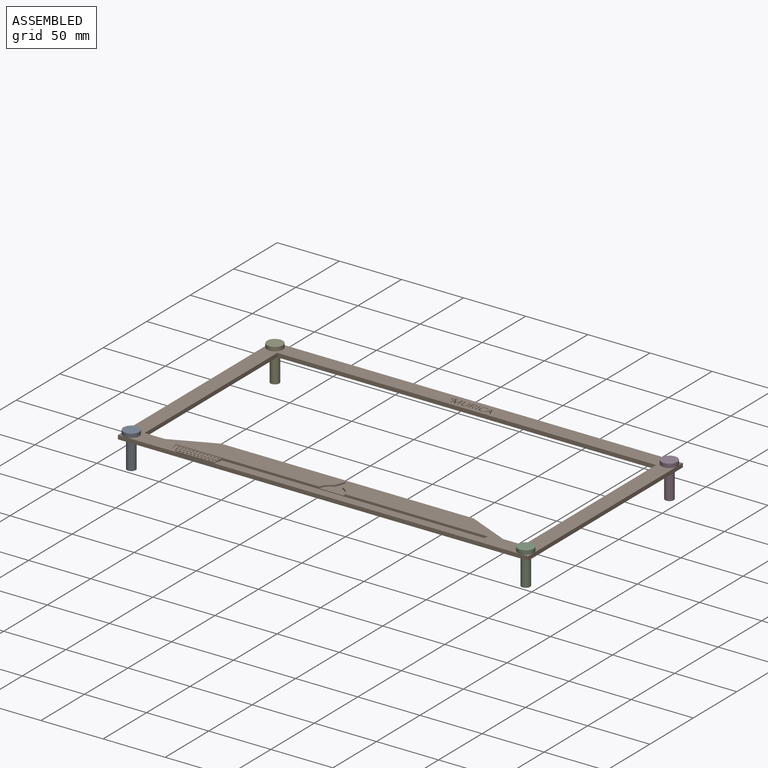
[diagram: assembled view]
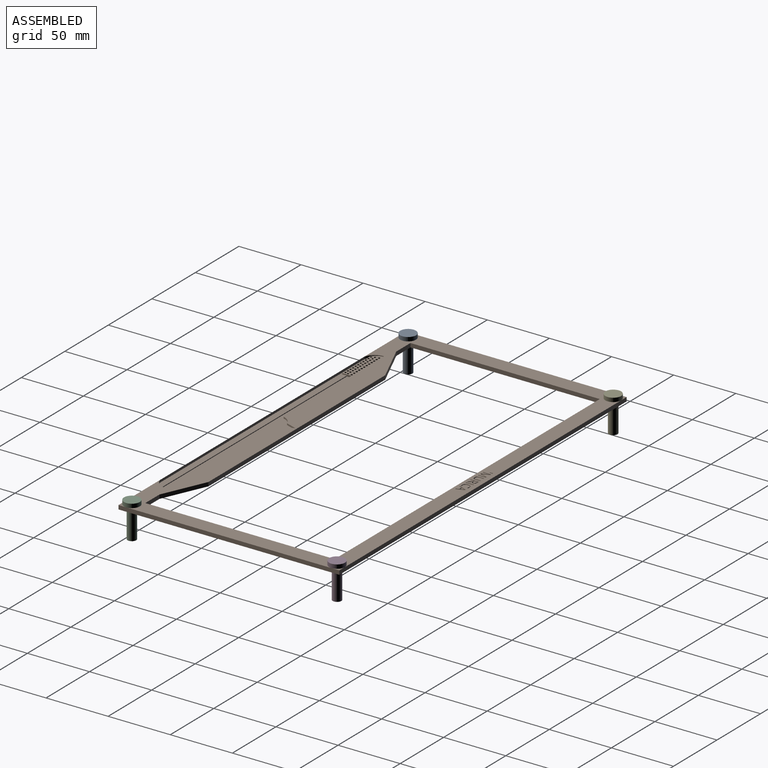
[diagram: assembled view, second angle]
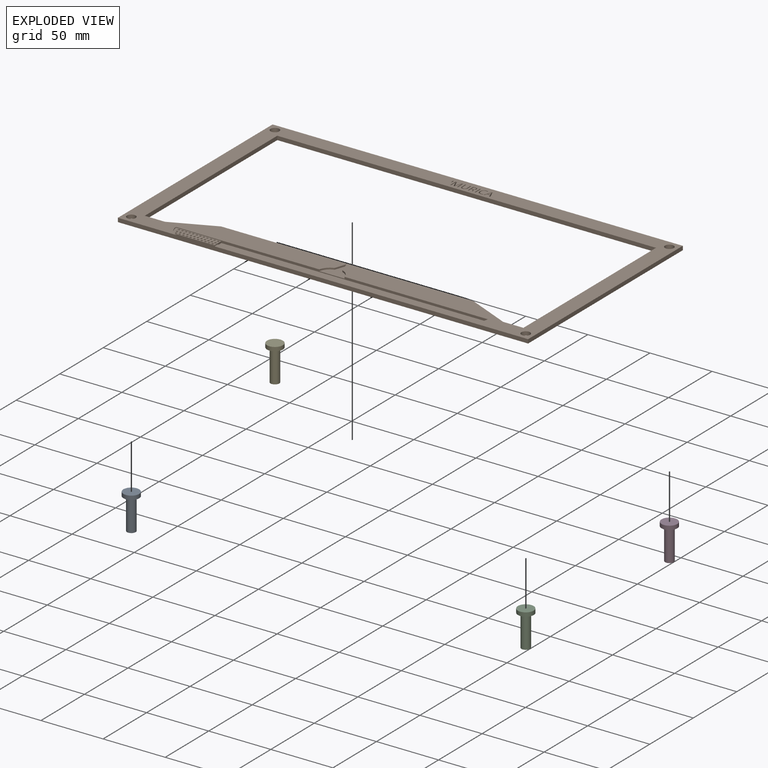
[diagram: exploded view]
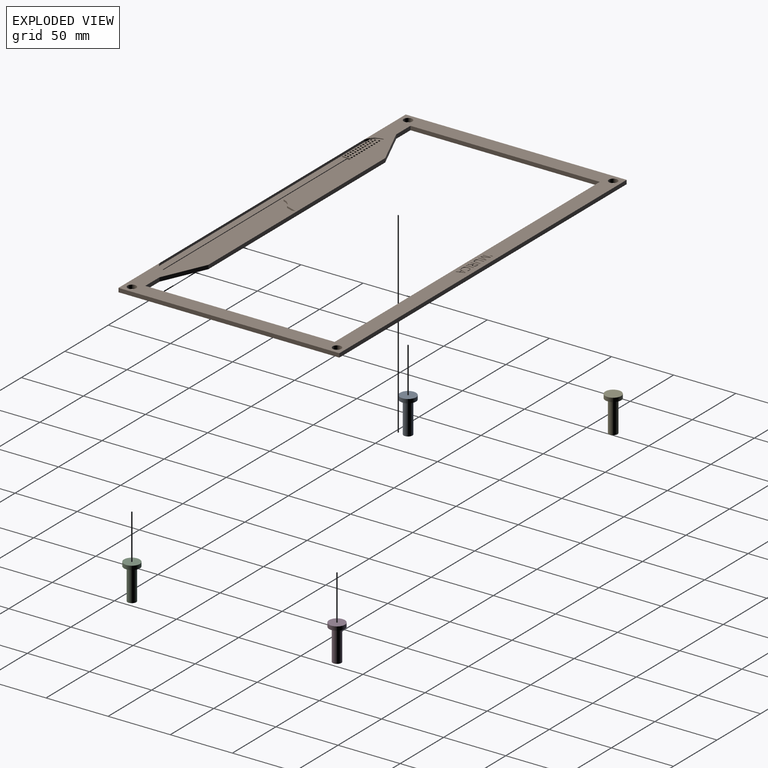
[diagram: exploded view, second angle]
ASSEMBLY  parts=5 mates=3
PART A: 5 faces, bbox 12.7x12.7x28.6 mm
  f0: cylinder r=6.35mm len=12.7mm, axis (0,0,-1), area 126.7mm2, adj f1,f2
  f1: plane 12.7x12.7mm, normal (0,0,1), area 126.7mm2, adj f0
  f2: plane 12.7x12.7mm, normal (0,0,-1), area 88.4mm2, adj f0,f3
  f3: cylinder r=3.49mm len=25.4mm, axis (0,0,1), area 557.4mm2, adj f2,f4
  f4: plane 6.99x6.99mm, normal (0,0,-1), area 38.3mm2, adj f3
PART B: 339 faces, bbox 330.2x177.8x3.2 mm
  f0: plane 330.2x177.8mm, normal (0,0,1), area 12991.8mm2, adj f2,f4,f5,f6,f7,f8,f9,f10
  f1: plane 243.17x1.4mm, normal (0,-1,0), area 179.3mm2, adj f20,f22,f23,f25,f32,f33
  f2: plane 250.99x1.91mm, normal (0,-1,0), area 401.3mm2, adj f0,f20,f23,f25,f26,f27,f30,f31
  f3: plane 330.2x177.8mm, normal (0,0,-1), area 15726.8mm2, adj f4,f5,f6,f7,f8,f9,f10,f11
  f4: plane 16.33x3.18mm, normal (0,1,0), area 51.9mm2, adj f0,f3,f5,f15
  f5: plane 34.47x15.24mm, normal (0.4,0.91,0), area 119.7mm2, adj f0,f3,f4,f6
  f6: plane 203.2x3.18mm, normal (0,1,0), area 645.2mm2, adj f0,f3,f5,f7
  f7: plane 34.47x15.24mm, normal (-0.4,0.91,0), area 119.7mm2, adj f0,f3,f6,f8
  f8: plane 16.33x3.18mm, normal (0,1,0), area 51.9mm2, adj f0,f3,f7,f9
  f9: plane 152.4x3.18mm, normal (1,0,0), area 483.9mm2, adj f0,f3,f8,f10
  f10: plane 304.8x3.18mm, normal (0,-1,0), area 967.7mm2, adj f0,f3,f9,f15
  f11: plane 330.2x3.18mm, normal (0,-1,0), area 1048.4mm2, adj f0,f3,f12,f14
  f12: plane 177.8x3.18mm, normal (1,0,0), area 564.5mm2, adj f0,f3,f11,f13
  f13: plane 330.2x3.18mm, normal (0,1,0), area 1048.4mm2, adj f0,f3,f12,f14
  f14: plane 177.8x3.18mm, normal (-1,0,0), area 564.5mm2, adj f0,f3,f11,f13
  f15: plane 152.4x3.18mm, normal (-1,0,0), area 483.9mm2, adj f0,f3,f4,f10
  f16: cylinder r=3.49mm len=6.99mm, axis (0,0,1), area 69.7mm2, adj f0,f3
  f17: cylinder r=3.49mm len=6.99mm, axis (0,0,1), area 69.7mm2, adj f0,f3
  f18: cylinder r=3.49mm len=6.99mm, axis (0,0,1), area 69.7mm2, adj f0,f3
  f19: cylinder r=3.49mm len=6.99mm, axis (0,0,1), area 69.7mm2, adj f0,f3
  f20: cylinder r=11.12mm len=10.2mm, axis (0,0,1), area 13.1mm2, adj f0,f1,f2,f21,f22,f33
  f21: plane 235.48x1.91mm, normal (0,1,0), area 448.6mm2, adj f0,f20,f22,f25
  f22: plane 243.17x2.13mm, normal (0,0,1), area 510.8mm2, adj f1,f20,f21,f25
  f23: plane 8.07x1.4mm, normal (1,0,0), area 8.9mm2, adj f1,f2,f24,f26,f32,f33
  f24: plane 213.44x0.64mm, normal (0,1,0), area 135.5mm2, adj f23,f25,f26,f32
  f25: cylinder r=11.12mm len=10.2mm, axis (0,0,1), area 23mm2, adj f0,f1,f2,f21,f22,f24,f26,f32
  f26: plane 214.46x4.27mm, normal (0,0,1), area 915.2mm2, adj f2,f23,f24,f25
  f27: cylinder r=10.43mm len=7.58mm, axis (0,0,1), area 13.7mm2, adj f0,f2,f28,f31
  f28: plane 9.12x3.17mm, normal (-0.94,-0.33,0), area 12.3mm2, adj f0,f27,f29,f31
  f29: plane 9.12x3.17mm, normal (0.94,-0.33,0), area 12.3mm2, adj f0,f28,f30,f31
  f30: cylinder r=10.43mm len=7.58mm, axis (0,0,1), area 13.7mm2, adj f0,f2,f29,f31
  f31: plane 20.32x16.7mm, normal (0,0,1), area 148.9mm2, adj f2,f27,f28,f29,f30
  f32: plane 213.44x3.79mm, normal (0,0,1), area 804.8mm2, adj f1,f23,f24,f25
  f33: plane 36.53x8.07mm, normal (0,0,1), area 210.6mm2, adj f1,f2,f20,f23,f35,f36,f37,f38
  f34: plane 1.78x1.76mm, normal (0,0,1), area 2.1mm2, adj f35,f36,f37,f38,f39
  f35: plane 2.03x1.09mm, normal (0.98,-0.2,0), area 2.2mm2, adj f33,f34,f36,f39
  f36: plane 2.03x1.1mm, normal (0.12,-0.99,0), area 2.2mm2, adj f33,f34,f35,f37
  f37: plane 2.03x1.01mm, normal (-0.91,-0.42,0), area 2.2mm2, adj f33,f34,f36,f38
  f38: plane 2.03x0.81mm, normal (-0.68,0.73,0), area 2.2mm2, adj f33,f34,f37,f39
  f39: plane 2.03x0.97mm, normal (0.49,0.87,0), area 2.2mm2, adj f33,f34,f35,f38
  f40: plane 1.79x1.74mm, normal (0,0,1), area 2.1mm2, adj f41,f42,f43,f44,f45
  f41: plane 2.03x0.94mm, normal (0.53,0.85,0), area 2.2mm2, adj f33,f40,f42,f45
  f42: plane 2.03x1.07mm, normal (0.97,-0.25,0), area 2.2mm2, adj f33,f40,f41,f43
  f43: plane 2.03x1.11mm, normal (0.07,-1,0), area 2.2mm2, adj f33,f40,f42,f44
  f44: plane 2.03x1.03mm, normal (-0.93,-0.37,0), area 2.2mm2, adj f33,f40,f43,f45
  f45: plane 2.03x0.85mm, normal (-0.64,0.77,0), area 2.2mm2, adj f33,f40,f41,f44
  f46: plane 1.8x1.71mm, normal (0,0,1), area 2.1mm2, adj f47,f48,f49,f50,f51
  f47: plane 2.03x0.9mm, normal (0.81,-0.59,0), area 2.3mm2, adj f33,f46,f48,f51
  f48: plane 2.03x1.06mm, normal (-0.31,-0.95,0), area 2.3mm2, adj f33,f46,f47,f49
  f49: plane 2.03x1.11mm, normal (-1,0,0), area 2.3mm2, adj f33,f46,f48,f50
  f50: plane 2.03x1.06mm, normal (-0.31,0.95,0), area 2.3mm2, adj f33,f46,f49,f51
  f51: plane 2.03x0.9mm, normal (0.81,0.59,0), area 2.3mm2, adj f33,f46,f47,f50
  f52: plane 1.8x1.71mm, normal (0,0,1), area 2.1mm2, adj f53,f54,f55,f56,f57
  f53: plane 2.03x0.9mm, normal (0.81,-0.59,0), area 2.3mm2, adj f33,f52,f54,f57
  f54: plane 2.03x1.06mm, normal (-0.31,-0.95,0), area 2.3mm2, adj f33,f52,f53,f55
  f55: plane 2.03x1.11mm, normal (-1,0,0), area 2.3mm2, adj f33,f52,f54,f56
  f56: plane 2.03x1.06mm, normal (-0.31,0.95,0), area 2.3mm2, adj f33,f52,f55,f57
  f57: plane 2.03x0.9mm, normal (0.81,0.59,0), area 2.3mm2, adj f33,f52,f53,f56
  f58: plane 1.79x1.74mm, normal (0,0,1), area 2.1mm2, adj f59,f60,f61,f62,f63
  f59: plane 2.03x0.94mm, normal (0.53,0.85,0), area 2.2mm2, adj f33,f58,f60,f63
  f60: plane 2.03x1.07mm, normal (0.97,-0.25,0), area 2.2mm2, adj f33,f58,f59,f61
  f61: plane 2.03x1.11mm, normal (0.07,-1,0), area 2.2mm2, adj f33,f58,f60,f62
  f62: plane 2.03x1.03mm, normal (-0.93,-0.37,0), area 2.2mm2, adj f33,f58,f61,f63
  f63: plane 2.03x0.85mm, normal (-0.64,0.77,0), area 2.2mm2, adj f33,f58,f59,f62
  f64: plane 1.78x1.76mm, normal (0,0,1), area 2.1mm2, adj f65,f66,f67,f68,f69
  f65: plane 2.03x1.09mm, normal (0.98,-0.2,0), area 2.2mm2, adj f33,f64,f66,f69
  f66: plane 2.03x1.1mm, normal (0.12,-0.99,0), area 2.2mm2, adj f33,f64,f65,f67
  f67: plane 2.03x1.01mm, normal (-0.91,-0.42,0), area 2.2mm2, adj f33,f64,f66,f68
  f68: plane 2.03x0.81mm, normal (-0.68,0.73,0), area 2.2mm2, adj f33,f64,f67,f69
  f69: plane 2.03x0.97mm, normal (0.49,0.87,0), area 2.2mm2, adj f33,f64,f65,f68
  f70: plane 1.78x1.76mm, normal (0,0,1), area 2.1mm2, adj f71,f72,f73,f74,f75
  f71: plane 2.03x1.09mm, normal (0.98,-0.2,0), area 2.2mm2, adj f33,f70,f72,f75
  f72: plane 2.03x1.1mm, normal (0.12,-0.99,0), area 2.2mm2, adj f33,f70,f71,f73
  f73: plane 2.03x1.01mm, normal (-0.91,-0.42,0), area 2.2mm2, adj f33,f70,f72,f74
  f74: plane 2.03x0.81mm, normal (-0.68,0.73,0), area 2.2mm2, adj f33,f70,f73,f75
  f75: plane 2.03x0.97mm, normal (0.49,0.87,0), area 2.2mm2, adj f33,f70,f71,f74
  f76: plane 1.79x1.74mm, normal (0,0,1), area 2.1mm2, adj f77,f78,f79,f80,f81
  f77: plane 2.03x1.07mm, normal (0.97,-0.25,0), area 2.2mm2, adj f33,f76,f78,f81
  f78: plane 2.03x1.11mm, normal (0.07,-1,0), area 2.2mm2, adj f33,f76,f77,f79
  f79: plane 2.03x1.03mm, normal (-0.93,-0.37,0), area 2.2mm2, adj f33,f76,f78,f80
  f80: plane 2.03x0.85mm, normal (-0.64,0.77,0), area 2.2mm2, adj f33,f76,f79,f81
  f81: plane 2.03x0.94mm, normal (0.53,0.85,0), area 2.2mm2, adj f33,f76,f77,f80
  f82: plane 1.8x1.71mm, normal (0,0,1), area 2.1mm2, adj f83,f84,f85,f86,f87
  f83: plane 2.03x0.9mm, normal (0.81,0.59,0), area 2.3mm2, adj f33,f82,f84,f87
  f84: plane 2.03x0.9mm, normal (0.81,-0.59,0), area 2.3mm2, adj f33,f82,f83,f85
  f85: plane 2.03x1.06mm, normal (-0.31,-0.95,0), area 2.3mm2, adj f33,f82,f84,f86
  f86: plane 2.03x1.11mm, normal (-1,0,0), area 2.3mm2, adj f33,f82,f85,f87
  f87: plane 2.03x1.06mm, normal (-0.31,0.95,0), area 2.3mm2, adj f33,f82,f83,f86
  f88: plane 1.8x1.71mm, normal (0,0,1), area 2.1mm2, adj f89,f90,f91,f92,f93
  f89: plane 2.03x0.9mm, normal (0.81,-0.59,0), area 2.3mm2, adj f33,f88,f90,f93
  f90: plane 2.03x1.06mm, normal (-0.31,-0.95,0), area 2.3mm2, adj f33,f88,f89,f91
  f91: plane 2.03x1.11mm, normal (-1,0,0), area 2.3mm2, adj f33,f88,f90,f92
  f92: plane 2.03x1.06mm, normal (-0.31,0.95,0), area 2.3mm2, adj f33,f88,f91,f93
  f93: plane 2.03x0.9mm, normal (0.81,0.59,0), area 2.3mm2, adj f33,f88,f89,f92
  f94: plane 1.79x1.74mm, normal (0,0,1), area 2.1mm2, adj f95,f96,f97,f98,f99
  f95: plane 2.03x0.94mm, normal (0.53,0.85,0), area 2.2mm2, adj f33,f94,f96,f99
  f96: plane 2.03x1.07mm, normal (0.97,-0.25,0), area 2.2mm2, adj f33,f94,f95,f97
  f97: plane 2.03x1.11mm, normal (0.07,-1,0), area 2.2mm2, adj f33,f94,f96,f98
  f98: plane 2.03x1.03mm, normal (-0.93,-0.37,0), area 2.2mm2, adj f33,f94,f97,f99
  f99: plane 2.03x0.85mm, normal (-0.64,0.77,0), area 2.2mm2, adj f33,f94,f95,f98
  f100: plane 1.78x1.76mm, normal (0,0,1), area 2.1mm2, adj f101,f102,f103,f104,f105
  f101: plane 2.03x1.09mm, normal (0.98,-0.2,0), area 2.2mm2, adj f33,f100,f102,f105
  f102: plane 2.03x1.1mm, normal (0.12,-0.99,0), area 2.2mm2, adj f33,f100,f101,f103
  f103: plane 2.03x1.01mm, normal (-0.91,-0.42,0), area 2.2mm2, adj f33,f100,f102,f104
  f104: plane 2.03x0.81mm, normal (-0.68,0.73,0), area 2.2mm2, adj f33,f100,f103,f105
  f105: plane 2.03x0.97mm, normal (0.49,0.87,0), area 2.2mm2, adj f33,f100,f101,f104
  f106: plane 1.79x1.74mm, normal (0,0,1), area 2.1mm2, adj f107,f108,f109,f110,f111
  f107: plane 2.03x0.94mm, normal (0.53,0.85,0), area 2.2mm2, adj f33,f106,f108,f111
  f108: plane 2.03x1.07mm, normal (0.97,-0.25,0), area 2.2mm2, adj f33,f106,f107,f109
  f109: plane 2.03x1.11mm, normal (0.07,-1,0), area 2.2mm2, adj f33,f106,f108,f110
  f110: plane 2.03x1.03mm, normal (-0.93,-0.37,0), area 2.2mm2, adj f33,f106,f109,f111
  f111: plane 2.03x0.85mm, normal (-0.64,0.77,0), area 2.2mm2, adj f33,f106,f107,f110
  f112: plane 1.8x1.71mm, normal (0,0,1), area 2.1mm2, adj f113,f114,f115,f116,f117
  f113: plane 2.03x0.9mm, normal (0.81,-0.59,0), area 2.3mm2, adj f33,f112,f114,f117
  f114: plane 2.03x1.06mm, normal (-0.31,-0.95,0), area 2.3mm2, adj f33,f112,f113,f115
  f115: plane 2.03x1.11mm, normal (-1,0,0), area 2.3mm2, adj f33,f112,f114,f116
  f116: plane 2.03x1.06mm, normal (-0.31,0.95,0), area 2.3mm2, adj f33,f112,f115,f117
  f117: plane 2.03x0.9mm, normal (0.81,0.59,0), area 2.3mm2, adj f33,f112,f113,f116
  f118: plane 1.79x1.74mm, normal (0,0,1), area 2.1mm2, adj f119,f120,f121,f122,f123
  f119: plane 2.03x0.94mm, normal (0.53,0.85,0), area 2.2mm2, adj f33,f118,f120,f123
  f120: plane 2.03x1.07mm, normal (0.97,-0.25,0), area 2.2mm2, adj f33,f118,f119,f121
  f121: plane 2.03x1.11mm, normal (0.07,-1,0), area 2.2mm2, adj f33,f118,f120,f122
  f122: plane 2.03x1.03mm, normal (-0.93,-0.37,0), area 2.2mm2, adj f33,f118,f121,f123
  f123: plane 2.03x0.85mm, normal (-0.64,0.77,0), area 2.2mm2, adj f33,f118,f119,f122
  f124: plane 1.8x1.71mm, normal (0,0,1), area 2.1mm2, adj f125,f126,f127,f128,f129
  f125: plane 2.03x0.9mm, normal (0.81,-0.59,0), area 2.3mm2, adj f33,f124,f126,f129
  f126: plane 2.03x1.06mm, normal (-0.31,-0.95,0), area 2.3mm2, adj f33,f124,f125,f127
  f127: plane 2.03x1.11mm, normal (-1,0,0), area 2.3mm2, adj f33,f124,f126,f128
  f128: plane 2.03x1.06mm, normal (-0.31,0.95,0), area 2.3mm2, adj f33,f124,f127,f129
  f129: plane 2.03x0.9mm, normal (0.81,0.59,0), area 2.3mm2, adj f33,f124,f125,f128
  f130: plane 1.79x1.74mm, normal (0,0,1), area 2.1mm2, adj f131,f132,f133,f134,f135
  f131: plane 2.03x0.94mm, normal (0.53,0.85,0), area 2.2mm2, adj f33,f130,f132,f135
  f132: plane 2.03x1.07mm, normal (0.97,-0.25,0), area 2.2mm2, adj f33,f130,f131,f133
  f133: plane 2.03x1.11mm, normal (0.07,-1,0), area 2.2mm2, adj f33,f130,f132,f134
  f134: plane 2.03x1.03mm, normal (-0.93,-0.37,0), area 2.2mm2, adj f33,f130,f133,f135
  f135: plane 2.03x0.85mm, normal (-0.64,0.77,0), area 2.2mm2, adj f33,f130,f131,f134
  f136: plane 1.78x1.76mm, normal (0,0,1), area 2.1mm2, adj f137,f138,f139,f140,f141
  f137: plane 2.03x1.09mm, normal (0.98,-0.2,0), area 2.2mm2, adj f33,f136,f138,f141
  f138: plane 2.03x1.1mm, normal (0.12,-0.99,0), area 2.2mm2, adj f33,f136,f137,f139
  f139: plane 2.03x1.01mm, normal (-0.91,-0.42,0), area 2.2mm2, adj f33,f136,f138,f140
  f140: plane 2.03x0.81mm, normal (-0.68,0.73,0), area 2.2mm2, adj f33,f136,f139,f141
  f141: plane 2.03x0.97mm, normal (0.49,0.87,0), area 2.2mm2, adj f33,f136,f137,f140
  f142: plane 1.78x1.76mm, normal (0,0,1), area 2.1mm2, adj f143,f144,f145,f146,f147
  f143: plane 2.03x1.09mm, normal (0.98,-0.2,0), area 2.2mm2, adj f33,f142,f144,f147
  f144: plane 2.03x1.1mm, normal (0.12,-0.99,0), area 2.2mm2, adj f33,f142,f143,f145
  f145: plane 2.03x1.01mm, normal (-0.91,-0.42,0), area 2.2mm2, adj f33,f142,f144,f146
  f146: plane 2.03x0.81mm, normal (-0.68,0.73,0), area 2.2mm2, adj f33,f142,f145,f147
  f147: plane 2.03x0.97mm, normal (0.49,0.87,0), area 2.2mm2, adj f33,f142,f143,f146
  f148: plane 1.79x1.74mm, normal (0,0,1), area 2.1mm2, adj f149,f150,f151,f152,f153
  f149: plane 2.03x0.94mm, normal (0.53,0.85,0), area 2.2mm2, adj f33,f148,f150,f153
  f150: plane 2.03x1.07mm, normal (0.97,-0.25,0), area 2.2mm2, adj f33,f148,f149,f151
  f151: plane 2.03x1.11mm, normal (0.07,-1,0), area 2.2mm2, adj f33,f148,f150,f152
  f152: plane 2.03x1.03mm, normal (-0.93,-0.37,0), area 2.2mm2, adj f33,f148,f151,f153
  f153: plane 2.03x0.85mm, normal (-0.64,0.77,0), area 2.2mm2, adj f33,f148,f149,f152
  f154: plane 1.8x1.71mm, normal (0,0,1), area 2.1mm2, adj f155,f156,f157,f158,f159
  f155: plane 2.03x0.9mm, normal (0.81,-0.59,0), area 2.3mm2, adj f33,f154,f156,f159
  f156: plane 2.03x1.06mm, normal (-0.31,-0.95,0), area 2.3mm2, adj f33,f154,f155,f157
  f157: plane 2.03x1.11mm, normal (-1,0,0), area 2.3mm2, adj f33,f154,f156,f158
  f158: plane 2.03x1.06mm, normal (-0.31,0.95,0), area 2.3mm2, adj f33,f154,f157,f159
  f159: plane 2.03x0.9mm, normal (0.81,0.59,0), area 2.3mm2, adj f33,f154,f155,f158
  f160: plane 1.8x1.71mm, normal (0,0,1), area 2.1mm2, adj f161,f162,f163,f164,f165
  f161: plane 2.03x0.9mm, normal (0.81,-0.59,0), area 2.3mm2, adj f33,f160,f162,f165
  f162: plane 2.03x1.06mm, normal (-0.31,-0.95,0), area 2.3mm2, adj f33,f160,f161,f163
  f163: plane 2.03x1.11mm, normal (-1,0,0), area 2.3mm2, adj f33,f160,f162,f164
  f164: plane 2.03x1.06mm, normal (-0.31,0.95,0), area 2.3mm2, adj f33,f160,f163,f165
  f165: plane 2.03x0.9mm, normal (0.81,0.59,0), area 2.3mm2, adj f33,f160,f161,f164
  f166: plane 1.79x1.74mm, normal (0,0,1), area 2.1mm2, adj f167,f168,f169,f170,f171
  f167: plane 2.03x0.94mm, normal (0.53,0.85,0), area 2.2mm2, adj f33,f166,f168,f171
  f168: plane 2.03x1.07mm, normal (0.97,-0.25,0), area 2.2mm2, adj f33,f166,f167,f169
  f169: plane 2.03x1.11mm, normal (0.07,-1,0), area 2.2mm2, adj f33,f166,f168,f170
  f170: plane 2.03x1.03mm, normal (-0.93,-0.37,0), area 2.2mm2, adj f33,f166,f169,f171
  f171: plane 2.03x0.85mm, normal (-0.64,0.77,0), area 2.2mm2, adj f33,f166,f167,f170
  f172: plane 1.79x1.74mm, normal (0,0,1), area 2.1mm2, adj f173,f174,f175,f176,f177
  f173: plane 2.03x0.94mm, normal (0.53,0.85,0), area 2.2mm2, adj f33,f172,f174,f177
  f174: plane 2.03x1.07mm, normal (0.97,-0.25,0), area 2.2mm2, adj f33,f172,f173,f175
  f175: plane 2.03x1.11mm, normal (0.07,-1,0), area 2.2mm2, adj f33,f172,f174,f176
  f176: plane 2.03x1.03mm, normal (-0.93,-0.37,0), area 2.2mm2, adj f33,f172,f175,f177
  f177: plane 2.03x0.85mm, normal (-0.64,0.77,0), area 2.2mm2, adj f33,f172,f173,f176
  f178: plane 1.8x1.71mm, normal (0,0,1), area 2.1mm2, adj f179,f180,f181,f182,f183
  f179: plane 2.03x0.9mm, normal (0.81,-0.59,0), area 2.3mm2, adj f33,f178,f180,f183
  f180: plane 2.03x1.06mm, normal (-0.31,-0.95,0), area 2.3mm2, adj f33,f178,f179,f181
  f181: plane 2.03x1.11mm, normal (-1,0,0), area 2.3mm2, adj f33,f178,f180,f182
  f182: plane 2.03x1.06mm, normal (-0.31,0.95,0), area 2.3mm2, adj f33,f178,f181,f183
  f183: plane 2.03x0.9mm, normal (0.81,0.59,0), area 2.3mm2, adj f33,f178,f179,f182
  f184: plane 1.8x1.71mm, normal (0,0,1), area 2.1mm2, adj f185,f186,f187,f188,f189
  f185: plane 2.03x0.9mm, normal (0.81,-0.59,0), area 2.3mm2, adj f33,f184,f186,f189
  f186: plane 2.03x1.06mm, normal (-0.31,-0.95,0), area 2.3mm2, adj f33,f184,f185,f187
  f187: plane 2.03x1.11mm, normal (-1,0,0), area 2.3mm2, adj f33,f184,f186,f188
  f188: plane 2.03x1.06mm, normal (-0.31,0.95,0), area 2.3mm2, adj f33,f184,f187,f189
  f189: plane 2.03x0.9mm, normal (0.81,0.59,0), area 2.3mm2, adj f33,f184,f185,f188
  f190: plane 1.79x1.74mm, normal (0,0,1), area 2.1mm2, adj f191,f192,f193,f194,f195
  f191: plane 2.03x0.94mm, normal (0.53,0.85,0), area 2.2mm2, adj f33,f190,f192,f195
  f192: plane 2.03x1.07mm, normal (0.97,-0.25,0), area 2.2mm2, adj f33,f190,f191,f193
  f193: plane 2.03x1.11mm, normal (0.07,-1,0), area 2.2mm2, adj f33,f190,f192,f194
  f194: plane 2.03x1.03mm, normal (-0.93,-0.37,0), area 2.2mm2, adj f33,f190,f193,f195
  f195: plane 2.03x0.85mm, normal (-0.64,0.77,0), area 2.2mm2, adj f33,f190,f191,f194
  f196: plane 1.78x1.76mm, normal (0,0,1), area 2.1mm2, adj f197,f198,f199,f200,f201
  f197: plane 2.03x1.09mm, normal (0.98,-0.2,0), area 2.2mm2, adj f33,f196,f198,f201
  f198: plane 2.03x1.1mm, normal (0.12,-0.99,0), area 2.2mm2, adj f33,f196,f197,f199
  f199: plane 2.03x1.01mm, normal (-0.91,-0.42,0), area 2.2mm2, adj f33,f196,f198,f200
  f200: plane 2.03x0.81mm, normal (-0.68,0.73,0), area 2.2mm2, adj f33,f196,f199,f201
  f201: plane 2.03x0.97mm, normal (0.49,0.87,0), area 2.2mm2, adj f33,f196,f197,f200
  f202: plane 1.78x1.76mm, normal (0,0,1), area 2.1mm2, adj f203,f204,f205,f206,f207
  f203: plane 2.03x1.09mm, normal (0.98,-0.2,0), area 2.2mm2, adj f33,f202,f204,f207
  f204: plane 2.03x1.1mm, normal (0.12,-0.99,0), area 2.2mm2, adj f33,f202,f203,f205
  f205: plane 2.03x1.01mm, normal (-0.91,-0.42,0), area 2.2mm2, adj f33,f202,f204,f206
  f206: plane 2.03x0.81mm, normal (-0.68,0.73,0), area 2.2mm2, adj f33,f202,f205,f207
  f207: plane 2.03x0.97mm, normal (0.49,0.87,0), area 2.2mm2, adj f33,f202,f203,f206
  f208: plane 1.79x1.74mm, normal (0,0,1), area 2.1mm2, adj f209,f210,f211,f212,f213
  f209: plane 2.03x0.94mm, normal (0.53,0.85,0), area 2.2mm2, adj f33,f208,f210,f213
  f210: plane 2.03x1.07mm, normal (0.97,-0.25,0), area 2.2mm2, adj f33,f208,f209,f211
  f211: plane 2.03x1.11mm, normal (0.07,-1,0), area 2.2mm2, adj f33,f208,f210,f212
  f212: plane 2.03x1.03mm, normal (-0.93,-0.37,0), area 2.2mm2, adj f33,f208,f211,f213
  f213: plane 2.03x0.85mm, normal (-0.64,0.77,0), area 2.2mm2, adj f33,f208,f209,f212
  f214: plane 1.8x1.71mm, normal (0,0,1), area 2.1mm2, adj f215,f216,f217,f218,f219
  f215: plane 2.03x0.9mm, normal (0.81,-0.59,0), area 2.3mm2, adj f33,f214,f216,f219
  f216: plane 2.03x1.06mm, normal (-0.31,-0.95,0), area 2.3mm2, adj f33,f214,f215,f217
  f217: plane 2.03x1.11mm, normal (-1,0,0), area 2.3mm2, adj f33,f214,f216,f218
  f218: plane 2.03x1.06mm, normal (-0.31,0.95,0), area 2.3mm2, adj f33,f214,f217,f219
  f219: plane 2.03x0.9mm, normal (0.81,0.59,0), area 2.3mm2, adj f33,f214,f215,f218
  f220: plane 1.78x1.76mm, normal (0,0,1), area 2.1mm2, adj f221,f222,f223,f224,f225
  f221: plane 2.03x1.09mm, normal (0.98,-0.2,0), area 2.2mm2, adj f33,f220,f222,f225
  f222: plane 2.03x1.1mm, normal (0.12,-0.99,0), area 2.2mm2, adj f33,f220,f221,f223
  f223: plane 2.03x1.01mm, normal (-0.91,-0.42,0), area 2.2mm2, adj f33,f220,f222,f224
  f224: plane 2.03x0.81mm, normal (-0.68,0.73,0), area 2.2mm2, adj f33,f220,f223,f225
  f225: plane 2.03x0.97mm, normal (0.49,0.87,0), area 2.2mm2, adj f33,f220,f221,f224
  f226: plane 1.8x1.71mm, normal (0,0,1), area 2.1mm2, adj f227,f228,f229,f230,f231
  f227: plane 2.03x0.9mm, normal (0.81,-0.59,0), area 2.3mm2, adj f33,f226,f228,f231
  f228: plane 2.03x1.06mm, normal (-0.31,-0.95,0), area 2.3mm2, adj f33,f226,f227,f229
  f229: plane 2.03x1.11mm, normal (-1,0,0), area 2.3mm2, adj f33,f226,f228,f230
  f230: plane 2.03x1.06mm, normal (-0.31,0.95,0), area 2.3mm2, adj f33,f226,f229,f231
  f231: plane 2.03x0.9mm, normal (0.81,0.59,0), area 2.3mm2, adj f33,f226,f227,f230
  f232: plane 1.78x1.76mm, normal (0,0,1), area 2.1mm2, adj f233,f234,f235,f236,f237
  f233: plane 2.03x1.09mm, normal (0.98,-0.2,0), area 2.2mm2, adj f33,f232,f234,f237
  f234: plane 2.03x1.1mm, normal (0.12,-0.99,0), area 2.2mm2, adj f33,f232,f233,f235
  f235: plane 2.03x1.01mm, normal (-0.91,-0.42,0), area 2.2mm2, adj f33,f232,f234,f236
  f236: plane 2.03x0.81mm, normal (-0.68,0.73,0), area 2.2mm2, adj f33,f232,f235,f237
  f237: plane 2.03x0.97mm, normal (0.49,0.87,0), area 2.2mm2, adj f33,f232,f233,f236
  f238: plane 1.78x1.76mm, normal (0,0,1), area 2.1mm2, adj f239,f240,f241,f242,f243
  f239: plane 2.03x1.09mm, normal (0.98,-0.2,0), area 2.2mm2, adj f33,f238,f240,f243
  f240: plane 2.03x1.1mm, normal (0.12,-0.99,0), area 2.2mm2, adj f33,f238,f239,f241
  f241: plane 2.03x1.01mm, normal (-0.91,-0.42,0), area 2.2mm2, adj f33,f238,f240,f242
  f242: plane 2.03x0.81mm, normal (-0.68,0.73,0), area 2.2mm2, adj f33,f238,f241,f243
  f243: plane 2.03x0.97mm, normal (0.49,0.87,0), area 2.2mm2, adj f33,f238,f239,f242
  f244: plane 2.25x1.27mm, normal (-1,0.08,0), area 2.9mm2, adj f0,f245,f247,f248
  f245: plane 1.27x0.79mm, normal (0,-1,0), area 1mm2, adj f0,f244,f246,f248
  f246: plane 2.25x1.27mm, normal (1,0.08,0), area 2.9mm2, adj f0,f245,f247,f248
  f247: plane 1.27x0.45mm, normal (0,1,0), area 0.6mm2, adj f0,f244,f246,f248
  f248: plane 2.25x0.79mm, normal (0,0,1), area 1.4mm2, adj f244,f245,f246,f247
  f249: plane 5.52x2.11mm, normal (0.93,0.36,0), area 7.5mm2, adj f0,f250,f266,f267
  f250: plane 1.27x0.58mm, normal (0,1,0), area 0.7mm2, adj f0,f249,f251,f267
  f251: plane 5.51x2.13mm, normal (-0.93,0.36,0), area 7.5mm2, adj f0,f250,f252,f267
  f252: plane 1.27x0.03mm, normal (0,1,0), area 0mm2, adj f0,f251,f253,f267
  f253: extruded ~1.5x1.27mm, area 1.9mm2, adj f0,f252,f254,f267
  f254: plane 4.01x1.27mm, normal (1,0,0), area 5.1mm2, adj f0,f253,f255,f267
  f255: plane 1.27x0.72mm, normal (0,1,0), area 0.9mm2, adj f0,f254,f256,f267
  f256: plane 6.23x1.27mm, normal (-1,0,0), area 7.9mm2, adj f0,f255,f257,f267
  f257: plane 1.27x1.08mm, normal (0,-1,0), area 1.4mm2, adj f0,f256,f258,f267
  f258: plane 5.14x1.99mm, normal (0.93,-0.36,0), area 7mm2, adj f0,f257,f259,f267
  f259: plane 1.27x0.03mm, normal (0,-1,0), area 0mm2, adj f0,f258,f260,f267
  f260: plane 5.14x1.97mm, normal (-0.93,-0.36,0), area 7mm2, adj f0,f259,f261,f267
  f261: plane 1.27x1.09mm, normal (0,-1,0), area 1.4mm2, adj f0,f260,f262,f267
  f262: plane 6.23x1.27mm, normal (1,0,0), area 7.9mm2, adj f0,f261,f263,f267
  f263: plane 1.27x0.67mm, normal (0,1,0), area 0.8mm2, adj f0,f262,f264,f267
  f264: plane 3.96x1.27mm, normal (-1,0,0), area 5mm2, adj f0,f263,f265,f267
  f265: extruded ~1.56x1.27mm, area 2mm2, adj f0,f264,f266,f267
  f266: plane 1.27x0.03mm, normal (0,1,0), area 0mm2, adj f0,f249,f265,f267
  f267: plane 6.23x6.17mm, normal (0,0,1), area 16.6mm2, adj f249,f250,f251,f252,f253,f254,f255,f256
  f268: plane 4.03x1.27mm, normal (-1,0,0), area 5.1mm2, adj f0,f269,f281,f282
  f269: plane 1.27x0.72mm, normal (0,-1,0), area 0.9mm2, adj f0,f268,f270,f282
  f270: plane 4.05x1.27mm, normal (1,0,0), area 5.1mm2, adj f0,f269,f271,f282
  f271: extruded ~1.27x1.2mm, area 1.7mm2, adj f0,f270,f272,f282
  f272: extruded ~1.27x1.21mm, area 1.7mm2, adj f0,f271,f273,f282
  f273: extruded ~1.27x1.25mm, area 1.7mm2, adj f0,f272,f274,f282
  f274: extruded ~1.27x1.2mm, area 1.7mm2, adj f0,f273,f275,f282
  f275: plane 4.06x1.27mm, normal (-1,0,0), area 5.2mm2, adj f0,f274,f276,f282
  f276: plane 1.27x0.73mm, normal (0,-1,0), area 0.9mm2, adj f0,f275,f277,f282
  f277: plane 4.01x1.27mm, normal (1,0,0), area 5.1mm2, adj f0,f276,f278,f282
  f278: extruded ~1.69x1.27mm, area 2.3mm2, adj f0,f277,f279,f282
  f279: extruded ~1.74x1.27mm, area 2.4mm2, adj f0,f278,f280,f282
  f280: extruded ~1.77x1.27mm, area 2.4mm2, adj f0,f279,f281,f282
  f281: extruded ~1.67x1.27mm, area 2.3mm2, adj f0,f268,f280,f282
  f282: plane 6.31x4.77mm, normal (0,0,1), area 10.2mm2, adj f268,f269,f270,f271,f272,f273,f274,f275
  f283: plane 1.27x0.99mm, normal (0,-1,0), area 1.3mm2, adj f284,f300,f301,f337
  f284: plane 2.38x1.27mm, normal (-1,0,0), area 3mm2, adj f283,f285,f301,f337
  f285: plane 1.27x0.94mm, normal (0,1,0), area 1.2mm2, adj f284,f286,f301,f337
  f286: extruded ~1.27x1.17mm, area 1.5mm2, adj f285,f287,f301,f337
  f287: extruded ~1.27x0.89mm, area 1.3mm2, adj f286,f288,f301,f337
  f288: extruded ~1.27x0.91mm, area 1.3mm2, adj f287,f300,f301,f337
  f289: plane 2.59x1.27mm, normal (-1,0,0), area 3.3mm2, adj f0,f290,f299,f301
  f290: plane 1.3x1.27mm, normal (0,1,0), area 1.7mm2, adj f0,f289,f291,f301
  f291: plane 2.59x1.51mm, normal (0.86,0.5,0), area 3.8mm2, adj f0,f290,f292,f301
  f292: plane 1.27x0.86mm, normal (0,1,0), area 1.1mm2, adj f0,f291,f293,f301
  f293: plane 2.8x1.69mm, normal (-0.86,-0.52,0), area 4.2mm2, adj f0,f292,f294,f301
  f294: extruded ~1.67x1.27mm, area 2.9mm2, adj f0,f293,f295,f301
  f295: extruded ~1.32x1.27mm, area 1.9mm2, adj f0,f294,f296,f301
  f296: extruded ~1.69x1.27mm, area 2.3mm2, adj f0,f295,f297,f301
  f297: plane 1.71x1.27mm, normal (0,-1,0), area 2.2mm2, adj f0,f296,f298,f301
  f298: plane 6.23x1.27mm, normal (1,0,0), area 7.9mm2, adj f0,f297,f299,f301
  f299: plane 1.27x0.72mm, normal (0,1,0), area 0.9mm2, adj f0,f289,f298,f301
  f300: extruded ~1.27x1.12mm, area 1.5mm2, adj f283,f288,f301,f337
  f301: plane 6.23x4.39mm, normal (0,0,1), area 11.6mm2, adj f283,f284,f285,f286,f287,f288,f289,f290
  f302: plane 6.23x1.27mm, normal (1,0,0), area 7.9mm2, adj f0,f303,f305,f306
  f303: plane 1.27x0.72mm, normal (0,1,0), area 0.9mm2, adj f0,f302,f304,f306
  f304: plane 6.23x1.27mm, normal (-1,0,0), area 7.9mm2, adj f0,f303,f305,f306
  f305: plane 1.27x0.72mm, normal (0,-1,0), area 0.9mm2, adj f0,f302,f304,f306
  f306: plane 6.23x0.72mm, normal (0,0,1), area 4.5mm2, adj f302,f303,f304,f305
  f307: extruded ~1.62x1.27mm, area 2.3mm2, adj f0,f308,f321,f322
  f308: extruded ~1.41x1.27mm, area 1.9mm2, adj f0,f307,f309,f322
  f309: plane 1.27x0.62mm, normal (-0.9,0.44,0), area 0.9mm2, adj f0,f308,f310,f322
  f310: extruded ~1.71x1.27mm, area 2.2mm2, adj f0,f309,f311,f322
  f311: extruded ~1.6x1.27mm, area 2.1mm2, adj f0,f310,f312,f322
  f312: extruded ~1.27x1.12mm, area 2mm2, adj f0,f311,f313,f322
  f313: extruded ~1.69x1.27mm, area 2.2mm2, adj f0,f312,f314,f322
  f314: extruded ~2.37x1.27mm, area 3.2mm2, adj f0,f313,f315,f322
  f315: extruded ~2.12x1.27mm, area 3mm2, adj f0,f314,f316,f322
  f316: extruded ~1.6x1.27mm, area 2.1mm2, adj f0,f315,f317,f322
  f317: plane 1.27x0.63mm, normal (-1,0,0), area 0.8mm2, adj f0,f316,f318,f322
  f318: extruded ~1.49x1.27mm, area 1.9mm2, adj f0,f317,f319,f322
  f319: extruded ~1.63x1.27mm, area 2.3mm2, adj f0,f318,f320,f322
  f320: extruded ~1.89x1.27mm, area 2.6mm2, adj f0,f319,f321,f322
  f321: extruded ~1.87x1.27mm, area 2.5mm2, adj f0,f307,f320,f322
  f322: plane 6.4x4.71mm, normal (0,0,1), area 8.5mm2, adj f307,f308,f309,f310,f311,f312,f313,f314
  f323: plane 1.93x1.27mm, normal (0.94,0.35,0), area 2.6mm2, adj f324,f335,f336,f338
  f324: plane 2.01x1.27mm, normal (0,-1,0), area 2.6mm2, adj f323,f325,f336,f338
  f325: plane 1.93x1.27mm, normal (-0.94,0.35,0), area 2.6mm2, adj f324,f326,f336,f338
  f326: extruded ~1.27x0.9mm, area 1.2mm2, adj f325,f335,f336,f338
  f327: plane 1.98x1.27mm, normal (0.93,0.36,0), area 2.7mm2, adj f0,f328,f334,f336
  f328: plane 1.27x0.75mm, normal (0,1,0), area 1mm2, adj f0,f327,f329,f336
  f329: plane 6.25x2.45mm, normal (-0.93,-0.36,0), area 8.5mm2, adj f0,f328,f330,f336
  f330: plane 1.27x0.61mm, normal (0,-1,0), area 0.8mm2, adj f0,f329,f331,f336
  f331: plane 6.25x2.46mm, normal (0.93,-0.37,0), area 8.5mm2, adj f0,f330,f332,f336
  f332: plane 1.27x0.73mm, normal (0,1,0), area 0.9mm2, adj f0,f331,f333,f336
  f333: plane 1.98x1.27mm, normal (-0.93,0.36,0), area 2.7mm2, adj f0,f332,f334,f336
  f334: plane 2.5x1.27mm, normal (0,1,0), area 3.2mm2, adj f0,f327,f333,f336
  f335: extruded ~1.27x0.9mm, area 1.2mm2, adj f323,f326,f336,f338
  f336: plane 6.25x5.52mm, normal (0,0,1), area 10mm2, adj f323,f324,f325,f326,f327,f328,f329,f330
  f337: plane 2.47x2.38mm, normal (0,0,1), area 5.3mm2, adj f283,f284,f285,f286,f287,f288,f300
  f338: plane 2.83x2.01mm, normal (0,0,1), area 2.7mm2, adj f323,f324,f325,f326,f335
PART C: same geometry as A
PART D: same geometry as A
PART E: same geometry as A
PLACE A t=(-5.18,-165.96,1.61)mm
PLACE B t=(-5.18,-0.86,1.61)mm
PLACE C t=(312.32,-165.96,1.61)mm
PLACE D t=(312.32,-0.86,1.61)mm
PLACE E t=(-5.18,-0.86,1.61)mm
MATE fastened D.f0 <-> B.f18  axis (0,0,-1) through (153.57,81.69,4.78)mm
MATE fastened C.f0 <-> B.f19  axis (0,0,-1) through (153.57,-83.41,4.78)mm
MATE fastened A.f0 <-> B.f16  axis (0,0,1) through (-163.93,-83.41,4.78)mm
